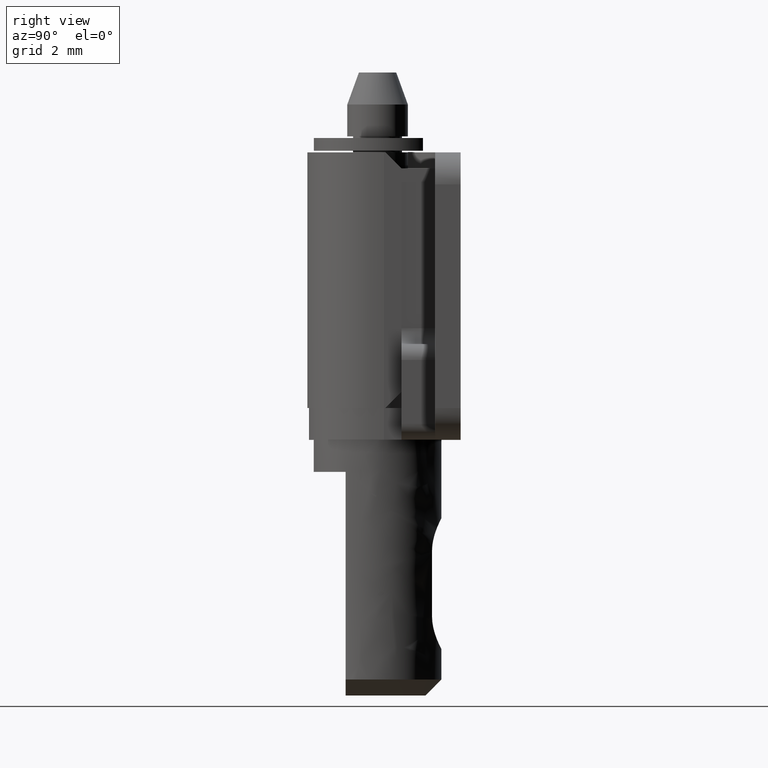
[diagram: clean part render]
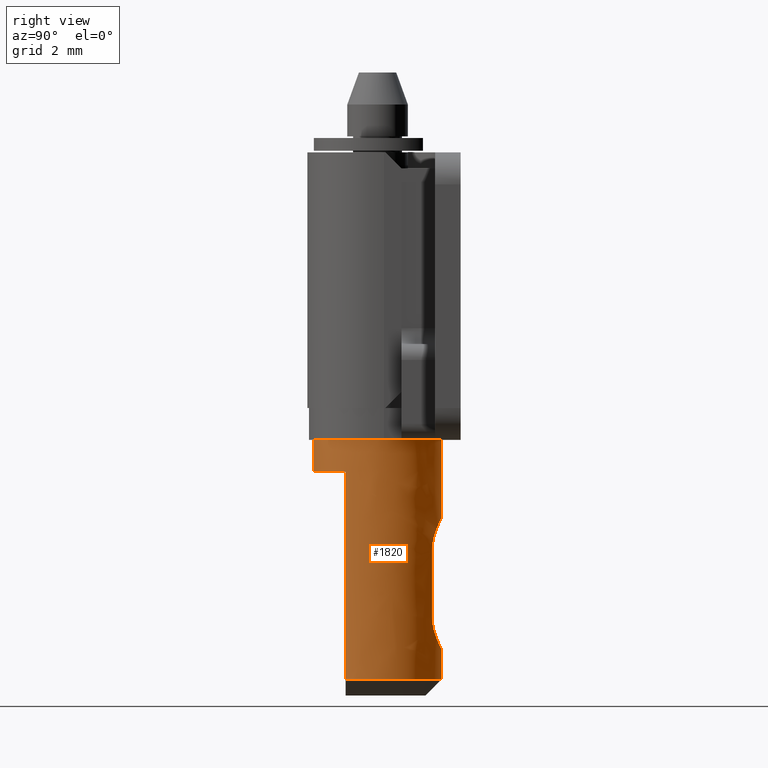
[diagram: same view with one face highlighted and labeled with its STEP entity id]
A machine part, right view. The second image highlights one B-rep face of the part: STEP entity #1820.
In plain terms, the highlighted face is a freeform B-spline surface patch.
Its self-contained STEP definition (entity closure, byte-faithful):
#1600=CARTESIAN_POINT('',(-0.122097079087866,-1.996269596842623,8.0));
#1601=VERTEX_POINT('',#1600);
#1617=CARTESIAN_POINT('',(2.0,0.0,8.0));
#1618=VERTEX_POINT('',#1617);
#1619=CARTESIAN_POINT('',(2.0,0.0,8.0));
#1620=CARTESIAN_POINT('',(2.000000000000000,-2.000000000000000,8.0));
#1621=CARTESIAN_POINT('',(0.0,-2.0,8.0));
#1622=CARTESIAN_POINT('',(-0.061105526606279,-2.000000000000000,8.0));
#1623=CARTESIAN_POINT('',(-0.122097079087866,-1.996269596842624,8.000000000000002));
#1631=(BOUNDED_CURVE()B_SPLINE_CURVE(2,(#1619,#1620,#1621,#1622,#1623),.UNSPECIFIED.,.F.,.U.)B_SPLINE_CURVE_WITH_KNOTS((3,2,3),(0.500000000000000,0.750000000000000,0.760667037759601),.UNSPECIFIED.)CURVE()GEOMETRIC_REPRESENTATION_ITEM()RATIONAL_B_SPLINE_CURVE((1.0,0.707106781186548,1.0,0.987502787901544,0.976072041669839))REPRESENTATION_ITEM(''));
#1632=EDGE_CURVE('',#1618,#1601,#1631,.T.);
#1634=CARTESIAN_POINT('',(0.122097079087709,1.996269596842633,8.0));
#1635=VERTEX_POINT('',#1634);
#1636=CARTESIAN_POINT('',(0.122097079087710,1.996269596842633,8.0));
#1637=CARTESIAN_POINT('',(2.0,1.881412133794398,8.0));
#1638=CARTESIAN_POINT('',(2.0,0.0,8.0));
#1646=(BOUNDED_CURVE()B_SPLINE_CURVE(2,(#1636,#1637,#1638),.UNSPECIFIED.,.F.,.U.)B_SPLINE_CURVE_WITH_KNOTS((3,3),(0.260667037759587,0.500000000000000),.UNSPECIFIED.)CURVE()GEOMETRIC_REPRESENTATION_ITEM()RATIONAL_B_SPLINE_CURVE((0.976072041669868,0.719603993284988,1.0))REPRESENTATION_ITEM(''));
#1647=EDGE_CURVE('',#1635,#1618,#1646,.T.);
#1673=CARTESIAN_POINT('',(0.122097079069711,1.996269596843733,8.187500000000002));
#1674=CARTESIAN_POINT('',(2.118366675913444,1.874172517774023,8.187500000000002));
#1675=CARTESIAN_POINT('',(1.996269596843733,-0.122097079069711,8.187500000000002));
#1676=CARTESIAN_POINT('',(1.874172517774023,-2.118366675913444,8.187500000000002));
#1677=CARTESIAN_POINT('',(-0.122097079069711,-1.996269596843733,8.187500000000002));
#1678=CARTESIAN_POINT('',(0.122097079069711,1.996269596843733,0.307812499999941));
#1679=CARTESIAN_POINT('',(2.118366675913444,1.874172517774023,0.307812499999941));
#1680=CARTESIAN_POINT('',(1.996269596843733,-0.122097079069711,0.307812499999941));
#1681=CARTESIAN_POINT('',(1.874172517774023,-2.118366675913444,0.307812499999941));
#1682=CARTESIAN_POINT('',(-0.122097079069711,-1.996269596843733,0.307812499999941));
#1690=(BOUNDED_SURFACE()B_SPLINE_SURFACE(2,1,((#1673,#1678),(#1674,#1679),(#1675,#1680),(#1676,#1681),(#1677,#1682)),.UNSPECIFIED.,.F.,.F.,.U.)B_SPLINE_SURFACE_WITH_KNOTS((3,2,3),(2,2),(0.0,3.313708498984759,6.627416997969518),(0.0,7.879687500000062),.UNSPECIFIED.)GEOMETRIC_REPRESENTATION_ITEM()RATIONAL_B_SPLINE_SURFACE(((1.0,1.0),(0.707106781186548,0.707106781186548),(1.0,1.0),(0.707106781186548,0.707106781186548),(1.0,1.0)))REPRESENTATION_ITEM('')SURFACE());
#1691=ORIENTED_EDGE('',*,*,#1647,.T.);
#1692=ORIENTED_EDGE('',*,*,#1632,.T.);
#1693=CARTESIAN_POINT('',(-0.122096884365076,-1.996269608752360,6.999999999998314));
#1694=VERTEX_POINT('',#1693);
#1695=CARTESIAN_POINT('',(-0.122097079087866,-1.996269596842623,8.0));
#1696=CARTESIAN_POINT('',(-0.122096884365076,-1.996269608752360,6.999999999998314));
#1697=QUASI_UNIFORM_CURVE('',1,(#1695,#1696),.UNSPECIFIED.,.F.,.U.);
#1698=EDGE_CURVE('',#1601,#1694,#1697,.T.);
#1699=ORIENTED_EDGE('',*,*,#1698,.T.);
#1700=CARTESIAN_POINT('',(1.732050807568885,-1.0,6.999999999998760));
#1701=VERTEX_POINT('',#1700);
#1702=CARTESIAN_POINT('',(-0.122096884365076,-1.996269608752371,6.999999999998313));
#1703=CARTESIAN_POINT('',(-0.061105428971893,-2.000000000000000,6.999999999998312));
#1704=CARTESIAN_POINT('',(0.0,-2.0,6.999999999998312));
#1705=CARTESIAN_POINT('',(1.154700538379255,-2.0,6.999999999998311));
#1706=CARTESIAN_POINT('',(1.732050807568879,-0.999999999999996,6.999999999998766));
#1714=(BOUNDED_CURVE()B_SPLINE_CURVE(2,(#1702,#1703,#1704,#1705,#1706),.UNSPECIFIED.,.F.,.U.)B_SPLINE_CURVE_WITH_KNOTS((3,2,3),(0.469695376591678,0.500000000000000,1.0),.UNSPECIFIED.)CURVE()GEOMETRIC_REPRESENTATION_ITEM()RATIONAL_B_SPLINE_CURVE((0.984744107475307,0.991879900630811,1.0,0.866025403784438,1.0))REPRESENTATION_ITEM(''));
#1715=EDGE_CURVE('',#1694,#1701,#1714,.T.);
#1716=ORIENTED_EDGE('',*,*,#1715,.T.);
#1717=CARTESIAN_POINT('',(1.732050807568850,-1.0,0.499999999999943));
#1718=VERTEX_POINT('',#1717);
#1719=CARTESIAN_POINT('',(1.732050807568885,-1.0,6.999999999998760));
#1720=CARTESIAN_POINT('',(1.732050807568850,-1.0,0.499999999999943));
#1721=QUASI_UNIFORM_CURVE('',1,(#1719,#1720),.UNSPECIFIED.,.F.,.U.);
#1722=EDGE_CURVE('',#1701,#1718,#1721,.T.);
#1723=ORIENTED_EDGE('',*,*,#1722,.T.);
#1724=CARTESIAN_POINT('',(0.122097689102757,1.996269559532312,0.499999999999943));
#1725=VERTEX_POINT('',#1724);
#1726=CARTESIAN_POINT('',(0.122097689102757,1.996269559532312,0.499999999999943));
#1727=CARTESIAN_POINT('',(0.780368330415523,1.956007800430424,0.499999999999943));
#1728=CARTESIAN_POINT('',(1.285575219373063,1.532088886237930,0.499999999999943));
#1729=CARTESIAN_POINT('',(2.571150438746126,0.453363193811338,0.499999999999943));
#1730=CARTESIAN_POINT('',(1.732050807568845,-0.999999999999996,0.499999999999943));
#1738=(BOUNDED_CURVE()B_SPLINE_CURVE(2,(#1726,#1727,#1728,#1729,#1730),.UNSPECIFIED.,.F.,.U.)B_SPLINE_CURVE_WITH_KNOTS((3,2,3),(0.513990574575450,0.666666666666667,1.0),.UNSPECIFIED.)CURVE()GEOMETRIC_REPRESENTATION_ITEM()RATIONAL_B_SPLINE_CURVE((0.883846505752535,0.892841739557143,1.0,0.766044443118977,1.0))REPRESENTATION_ITEM(''));
#1739=EDGE_CURVE('',#1725,#1718,#1738,.T.);
#1740=ORIENTED_EDGE('',*,*,#1739,.F.);
#1741=CARTESIAN_POINT('',(0.122097138440209,1.996270568311128,1.457110530704186));
#1742=VERTEX_POINT('',#1741);
#1743=CARTESIAN_POINT('',(0.122097138440209,1.996270568311128,1.457110530704186));
#1744=CARTESIAN_POINT('',(0.122097689102757,1.996269559532312,0.499999999999943));
#1745=QUASI_UNIFORM_CURVE('',1,(#1743,#1744),.UNSPECIFIED.,.F.,.U.);
#1746=EDGE_CURVE('',#1742,#1725,#1745,.T.);
#1747=ORIENTED_EDGE('',*,*,#1746,.F.);
#1748=CARTESIAN_POINT('',(1.050000000000000,1.702204453054895,2.500000000000315));
#1749=VERTEX_POINT('',#1748);
#1750=CARTESIAN_POINT('',(1.050000000000000,1.702204453054895,2.500000000000315));
#1751=CARTESIAN_POINT('',(1.049999997843562,1.702204417803819,2.429190315347657));
#1752=CARTESIAN_POINT('',(1.042914371542568,1.706629887277437,2.359895324812856));
#1753=CARTESIAN_POINT('',(1.022327171685974,1.718985377329022,2.258034989970949));
#1754=CARTESIAN_POINT('',(1.013791112579341,1.724055401675163,2.224430603373508));
#1755=CARTESIAN_POINT('',(0.993321099278045,1.735929860574345,2.157912144188070));
#1756=CARTESIAN_POINT('',(0.981491573445794,1.742671072979830,2.125372533297143));
#1757=CARTESIAN_POINT('',(0.941769941992006,1.764648473998227,2.030686416133225));
#1758=CARTESIAN_POINT('',(0.909565548645357,1.781703221353928,1.971019154170268));
#1759=CARTESIAN_POINT('',(0.852653115195682,1.809261014821606,1.886289817915313));
#1760=CARTESIAN_POINT('',(0.832321536793097,1.818732455050970,1.859003478835041));
#1761=CARTESIAN_POINT('',(0.789504331883004,1.837724027192108,1.806949793763671));
#1762=CARTESIAN_POINT('',(0.744383534401892,1.856837851208812,1.757188399305397));
#1763=CARTESIAN_POINT('',(0.694612087317837,1.875707527794190,1.711863229349591));
#1764=CARTESIAN_POINT('',(0.642412373609041,1.894220373632658,1.668764856798374));
#1765=CARTESIAN_POINT('',(0.614951995788496,1.903339716630245,1.648242493004011));
#1766=CARTESIAN_POINT('',(0.530332170876721,1.929307423965736,1.591223257539174));
#1767=CARTESIAN_POINT('',(0.470694216736649,1.944888489474102,1.558922233321806));
#1768=CARTESIAN_POINT('',(0.376122996929222,1.964577572088593,1.519081264134065));
#1769=CARTESIAN_POINT('',(0.343741128675407,1.970526624590317,1.507247582440761));
#1770=CARTESIAN_POINT('',(0.277134080252814,1.980992091796419,1.486633317519231));
#1771=CARTESIAN_POINT('',(0.243122988689270,1.985462413540968,1.477943407465282));
#1772=CARTESIAN_POINT('',(0.180244525229566,1.992071130369848,1.465168500813466));
#1773=CARTESIAN_POINT('',(0.151259239521479,1.994486593591308,1.460526974901048));
#1774=CARTESIAN_POINT('',(0.122097138440209,1.996270568311128,1.457110530704186));
#1775=B_SPLINE_CURVE_WITH_KNOTS('',3,(#1750,#1751,#1752,#1753,#1754,#1755,#1756,#1757,#1758,#1759,#1760,#1761,#1762,#1763,#1764,#1765,#1766,#1767,#1768,#1769,#1770,#1771,#1772,#1773,#1774),.UNSPECIFIED.,.F.,.U.,(4,2,2,2,2,2,1,2,2,2,2,2,4),(0.0,0.062500000000000,0.093750000000000,0.125000000000000,0.187500000000000,0.218750000000000,0.250000000000000,0.281250000000000,0.312500000000000,0.375000000000000,0.406250000000000,0.437500000000000,0.463928383885214),.UNSPECIFIED.);
#1776=EDGE_CURVE('',#1749,#1742,#1775,.T.);
#1777=ORIENTED_EDGE('',*,*,#1776,.F.);
#1778=CARTESIAN_POINT('',(1.050000000000000,1.702204453054910,4.500000000000309));
#1779=VERTEX_POINT('',#1778);
#1780=CARTESIAN_POINT('',(1.050000000000000,1.702204453054895,2.500000000000315));
#1781=CARTESIAN_POINT('',(1.050000000000000,1.702204453054910,4.500000000000309));
#1782=QUASI_UNIFORM_CURVE('',1,(#1780,#1781),.UNSPECIFIED.,.F.,.U.);
#1783=EDGE_CURVE('',#1749,#1779,#1782,.T.);
#1784=ORIENTED_EDGE('',*,*,#1783,.T.);
#1785=CARTESIAN_POINT('',(0.122097770387292,1.996269589418099,5.542874066149091));
#1786=VERTEX_POINT('',#1785);
#1787=CARTESIAN_POINT('',(0.122097770387292,1.996269589418099,5.542874066149091));
#1788=CARTESIAN_POINT('',(0.150789172752883,1.994514910297395,5.539515733297877));
#1789=CARTESIAN_POINT('',(0.213577992231790,1.989301942734263,5.529512493030813));
#1790=CARTESIAN_POINT('',(0.274922567472613,1.981298871234413,5.513960840568278));
#1791=CARTESIAN_POINT('',(0.341288091982132,1.970951557711899,5.493590347622362));
#1792=CARTESIAN_POINT('',(0.374204567216614,1.964950170116245,5.481661329523032));
#1793=CARTESIAN_POINT('',(0.469775518074226,1.945133584037544,5.441583538271724));
#1794=CARTESIAN_POINT('',(0.529700079638231,1.929482481811877,5.409143245932229));
#1795=CARTESIAN_POINT('',(0.614364389969559,1.903530235059814,5.352179349246120));
#1796=CARTESIAN_POINT('',(0.641831493254869,1.894419040296874,5.331685208893523));
#1797=CARTESIAN_POINT('',(0.694192711634987,1.875864506823718,5.288507980086775));
#1798=CARTESIAN_POINT('',(0.719131289276448,1.866414874505243,5.265817950245597));
#1799=CARTESIAN_POINT('',(0.790396135530834,1.837904269375853,5.194471828847616));
#1800=CARTESIAN_POINT('',(0.833212335419105,1.818666436470390,5.142583897297204));
#1801=CARTESIAN_POINT('',(0.909391923525618,1.781795941467596,5.029305067547660));
#1802=CARTESIAN_POINT('',(0.941542121455559,1.764768032644646,4.969707631547565));
#1803=CARTESIAN_POINT('',(0.981095742838915,1.742893562245367,4.875642684494348));
#1804=CARTESIAN_POINT('',(0.992823219307271,1.736214624375079,4.843502325100201));
#1805=CARTESIAN_POINT('',(1.013246811153808,1.724375277582389,4.777529963429352));
#1806=CARTESIAN_POINT('',(1.021979215447847,1.719192982933445,4.743482117560962));
#1807=CARTESIAN_POINT('',(1.042900282342890,1.706640997178049,4.640571528683746));
#1808=CARTESIAN_POINT('',(1.049999987000193,1.702204452584197,4.570867434222946));
#1809=CARTESIAN_POINT('',(1.050000000000000,1.702204453054910,4.500000000000309));
#1810=B_SPLINE_CURVE_WITH_KNOTS('',3,(#1787,#1788,#1789,#1790,#1791,#1792,#1793,#1794,#1795,#1796,#1797,#1798,#1799,#1800,#1801,#1802,#1803,#1804,#1805,#1806,#1807,#1808,#1809),.UNSPECIFIED.,.F.,.U.,(4,1,2,2,2,2,2,2,2,2,2,4),(0.536714389859508,0.562500000000000,0.593750000000000,0.625000000000000,0.687500000000000,0.718750000000000,0.750000000000000,0.812500000000001,0.875000000000001,0.906250000000001,0.937500000000001,1.0),.UNSPECIFIED.);
#1811=EDGE_CURVE('',#1786,#1779,#1810,.T.);
#1812=ORIENTED_EDGE('',*,*,#1811,.F.);
#1813=CARTESIAN_POINT('',(0.122097079087709,1.996269596842633,8.0));
#1814=CARTESIAN_POINT('',(0.122097770387292,1.996269589418099,5.542874066149091));
#1815=QUASI_UNIFORM_CURVE('',1,(#1813,#1814),.UNSPECIFIED.,.F.,.U.);
#1816=EDGE_CURVE('',#1635,#1786,#1815,.T.);
#1817=ORIENTED_EDGE('',*,*,#1816,.F.);
#1818=EDGE_LOOP('',(#1691,#1692,#1699,#1716,#1723,#1740,#1747,#1777,#1784,#1812,#1817));
#1819=FACE_OUTER_BOUND('',#1818,.T.);
#1820=ADVANCED_FACE('',(#1819),#1690,.T.);